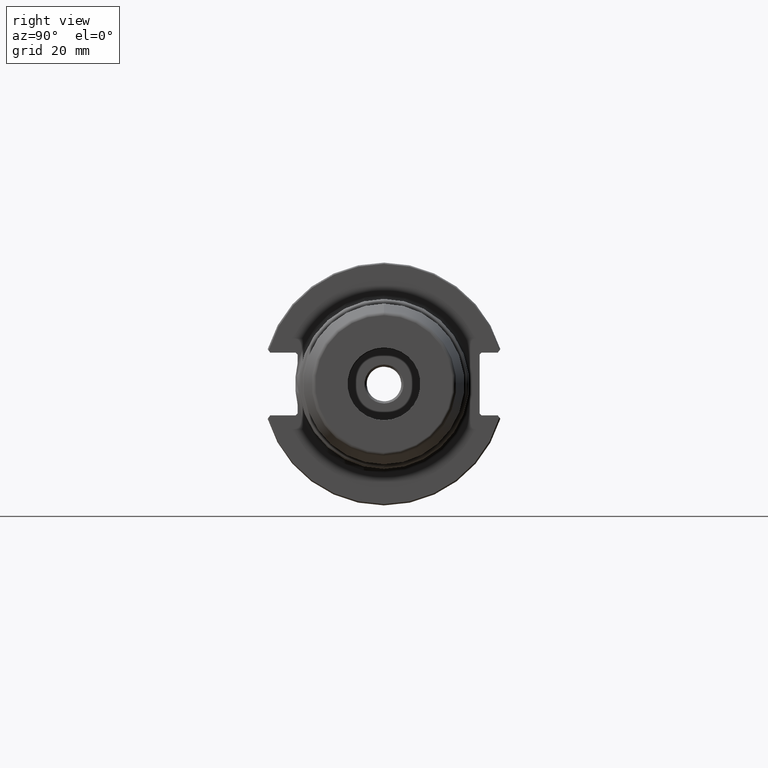
[diagram: clean part render]
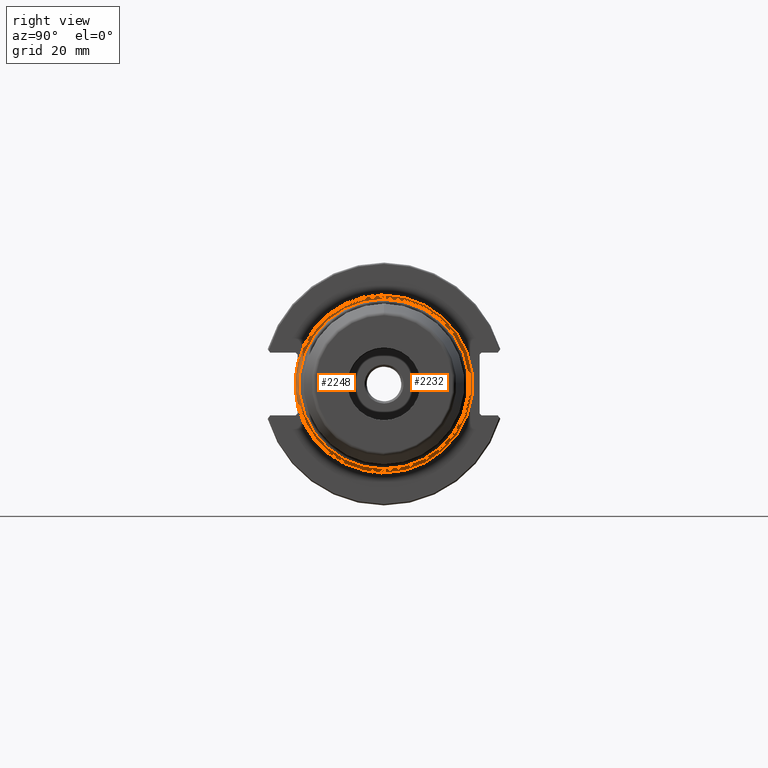
[diagram: same view with one multi-face feature highlighted, each face labeled with its STEP entity id]
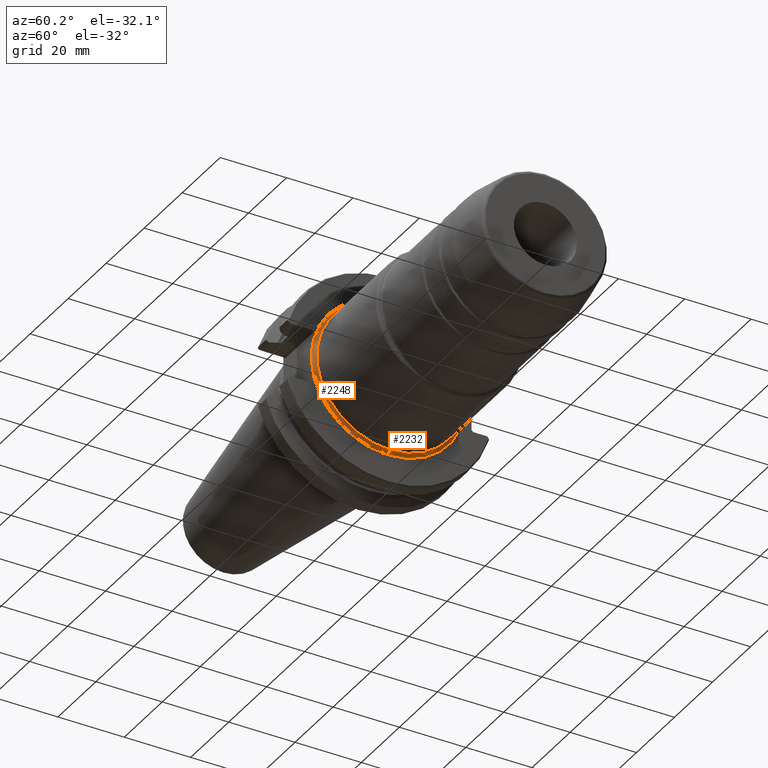
[diagram: same view with one multi-face feature highlighted, each face labeled with its STEP entity id]
A machine part, right view. The highlighted faces form ONE feature: a constant-radius fillet chain: 2 tangent blend faces with common blend radius 1 mm. The faces share edges in the B-rep.
A second angle (auxiliary view) of the same feature is appended — it is thin or edge-on in the first view.
Their STEP definitions:
[1] entity #2232 (Torus):
#202=CARTESIAN_POINT('',(1.9075E1,0.E0,0.E0));
#203=DIRECTION('',(1.E0,0.E0,0.E0));
#204=DIRECTION('',(0.E0,0.E0,-1.E0));
#205=AXIS2_PLACEMENT_3D('',#202,#203,#204);
#217=CARTESIAN_POINT('',(2.0075E1,0.E0,0.E0));
#218=DIRECTION('',(1.E0,0.E0,0.E0));
#219=DIRECTION('',(0.E0,0.E0,-1.E0));
#220=AXIS2_PLACEMENT_3D('',#217,#218,#219);
#222=CARTESIAN_POINT('',(2.0075E1,0.E0,2.3225E1));
#223=DIRECTION('',(0.E0,1.E0,0.E0));
#224=DIRECTION('',(0.E0,0.E0,-1.E0));
#225=AXIS2_PLACEMENT_3D('',#222,#223,#224);
#232=CARTESIAN_POINT('',(2.0075E1,0.E0,-2.3225E1));
#233=DIRECTION('',(0.E0,-1.E0,0.E0));
#234=DIRECTION('',(0.E0,0.E0,1.E0));
#235=AXIS2_PLACEMENT_3D('',#232,#233,#234);
#1804=CARTESIAN_POINT('',(2.0075E1,0.E0,-2.2225E1));
#1805=VERTEX_POINT('',#1804);
#1866=CARTESIAN_POINT('',(2.0075E1,0.E0,2.2225E1));
#1867=VERTEX_POINT('',#1866);
#1876=CARTESIAN_POINT('',(1.9075E1,0.E0,-2.3225E1));
#1877=CARTESIAN_POINT('',(1.9075E1,0.E0,2.3225E1));
#1878=VERTEX_POINT('',#1876);
#1879=VERTEX_POINT('',#1877);
#2218=CARTESIAN_POINT('',(2.0075E1,0.E0,0.E0));
#2219=DIRECTION('',(1.E0,0.E0,0.E0));
#2220=DIRECTION('',(0.E0,0.E0,1.E0));
#2221=AXIS2_PLACEMENT_3D('',#2218,#2219,#2220);
#2222=TOROIDAL_SURFACE('',#2221,2.3225E1,1.E0);
#2223=ORIENTED_EDGE('',*,*,#2176,.F.);
#2225=ORIENTED_EDGE('',*,*,#2224,.F.);
#2227=ORIENTED_EDGE('',*,*,#2226,.T.);
#2229=ORIENTED_EDGE('',*,*,#2228,.T.);
#2230=EDGE_LOOP('',(#2223,#2225,#2227,#2229));
#2231=FACE_OUTER_BOUND('',#2230,.F.);
#2232=ADVANCED_FACE('',(#2231),#2222,.F.);
#206=CIRCLE('',#205,2.3225E1);
#221=CIRCLE('',#220,2.2225E1);
#226=CIRCLE('',#225,1.E0);
#236=CIRCLE('',#235,1.E0);
#2176=EDGE_CURVE('',#1878,#1879,#206,.T.);
#2224=EDGE_CURVE('',#1805,#1878,#236,.T.);
#2226=EDGE_CURVE('',#1805,#1867,#221,.T.);
#2228=EDGE_CURVE('',#1867,#1879,#226,.T.);
[2] entity #2248 (Torus):
#207=CARTESIAN_POINT('',(1.9075E1,0.E0,0.E0));
#208=DIRECTION('',(1.E0,0.E0,0.E0));
#209=DIRECTION('',(0.E0,0.E0,1.E0));
#210=AXIS2_PLACEMENT_3D('',#207,#208,#209);
#212=CARTESIAN_POINT('',(1.9075E1,0.E0,0.E0));
#213=DIRECTION('',(1.E0,0.E0,0.E0));
#214=DIRECTION('',(0.E0,-9.730893433800E-1,-2.304281445491E-1));
#215=AXIS2_PLACEMENT_3D('',#212,#213,#214);
#222=CARTESIAN_POINT('',(2.0075E1,0.E0,2.3225E1));
#223=DIRECTION('',(0.E0,1.E0,0.E0));
#224=DIRECTION('',(0.E0,0.E0,-1.E0));
#225=AXIS2_PLACEMENT_3D('',#222,#223,#224);
#227=CARTESIAN_POINT('',(2.0075E1,0.E0,0.E0));
#228=DIRECTION('',(-1.E0,0.E0,0.E0));
#229=DIRECTION('',(0.E0,0.E0,-1.E0));
#230=AXIS2_PLACEMENT_3D('',#227,#228,#229);
#232=CARTESIAN_POINT('',(2.0075E1,0.E0,-2.3225E1));
#233=DIRECTION('',(0.E0,-1.E0,0.E0));
#234=DIRECTION('',(0.E0,0.E0,1.E0));
#235=AXIS2_PLACEMENT_3D('',#232,#233,#234);
#903=CARTESIAN_POINT('',(1.9075E1,0.E0,0.E0));
#904=DIRECTION('',(-1.E0,0.E0,0.E0));
#905=DIRECTION('',(0.E0,-9.730893433800E-1,-2.304281445491E-1));
#906=AXIS2_PLACEMENT_3D('',#903,#904,#905);
#1804=CARTESIAN_POINT('',(2.0075E1,0.E0,-2.2225E1));
#1805=VERTEX_POINT('',#1804);
#1866=CARTESIAN_POINT('',(2.0075E1,0.E0,2.2225E1));
#1867=VERTEX_POINT('',#1866);
#1868=CARTESIAN_POINT('',(1.9075E1,-2.26E1,5.351693657152E0));
#1869=CARTESIAN_POINT('',(1.9075E1,-2.26E1,-5.351693657152E0));
#1870=VERTEX_POINT('',#1868);
#1871=VERTEX_POINT('',#1869);
#1876=CARTESIAN_POINT('',(1.9075E1,0.E0,-2.3225E1));
#1877=CARTESIAN_POINT('',(1.9075E1,0.E0,2.3225E1));
#1878=VERTEX_POINT('',#1876);
#1879=VERTEX_POINT('',#1877);
#2233=CARTESIAN_POINT('',(2.0075E1,0.E0,0.E0));
#2234=DIRECTION('',(1.E0,0.E0,0.E0));
#2235=DIRECTION('',(0.E0,0.E0,1.E0));
#2236=AXIS2_PLACEMENT_3D('',#2233,#2234,#2235);
#2237=TOROIDAL_SURFACE('',#2236,2.3225E1,1.E0);
#2238=ORIENTED_EDGE('',*,*,#2178,.F.);
#2239=ORIENTED_EDGE('',*,*,#2228,.F.);
#2241=ORIENTED_EDGE('',*,*,#2240,.F.);
#2242=ORIENTED_EDGE('',*,*,#2224,.T.);
#2243=ORIENTED_EDGE('',*,*,#2213,.F.);
#2245=ORIENTED_EDGE('',*,*,#2244,.T.);
#2246=EDGE_LOOP('',(#2238,#2239,#2241,#2242,#2243,#2245));
#2247=FACE_OUTER_BOUND('',#2246,.F.);
#2248=ADVANCED_FACE('',(#2247),#2237,.F.);
#211=CIRCLE('',#210,2.322500006557E1);
#216=CIRCLE('',#215,2.322500006584E1);
#226=CIRCLE('',#225,1.E0);
#231=CIRCLE('',#230,2.2225E1);
#236=CIRCLE('',#235,1.E0);
#907=CIRCLE('',#906,2.3225E1);
#2178=EDGE_CURVE('',#1879,#1870,#211,.T.);
#2213=EDGE_CURVE('',#1871,#1878,#216,.T.);
#2224=EDGE_CURVE('',#1805,#1878,#236,.T.);
#2228=EDGE_CURVE('',#1867,#1879,#226,.T.);
#2240=EDGE_CURVE('',#1805,#1867,#231,.T.);
#2244=EDGE_CURVE('',#1871,#1870,#907,.T.);